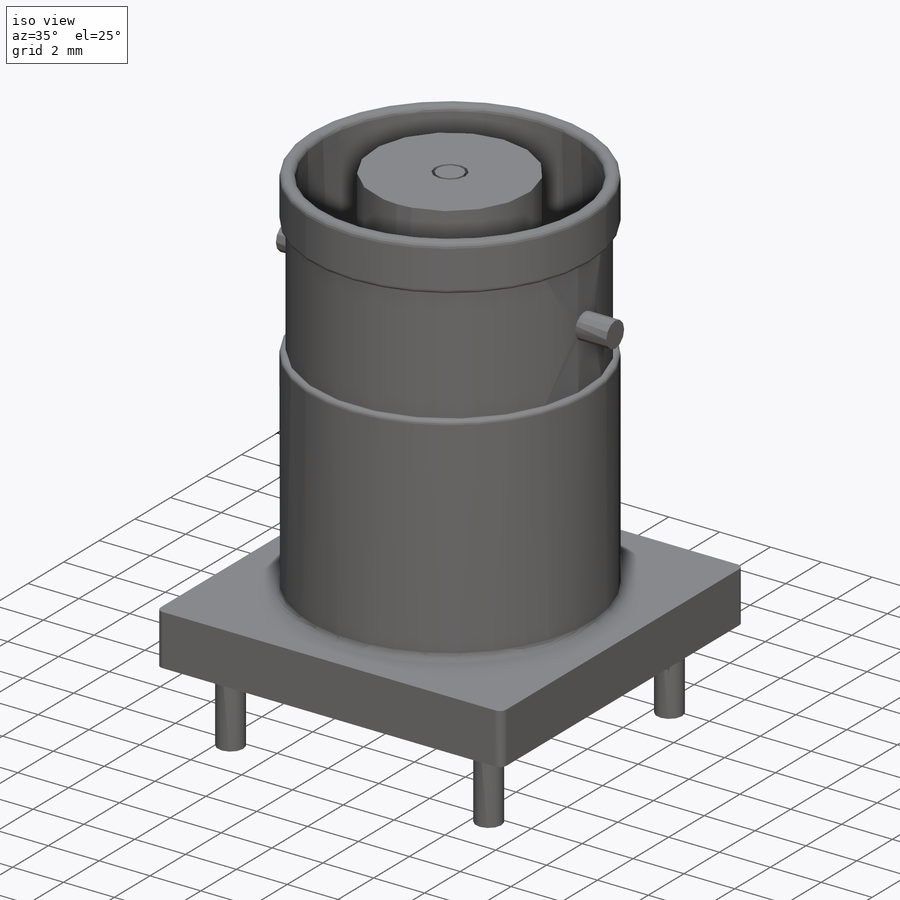
[diagram: iso view]
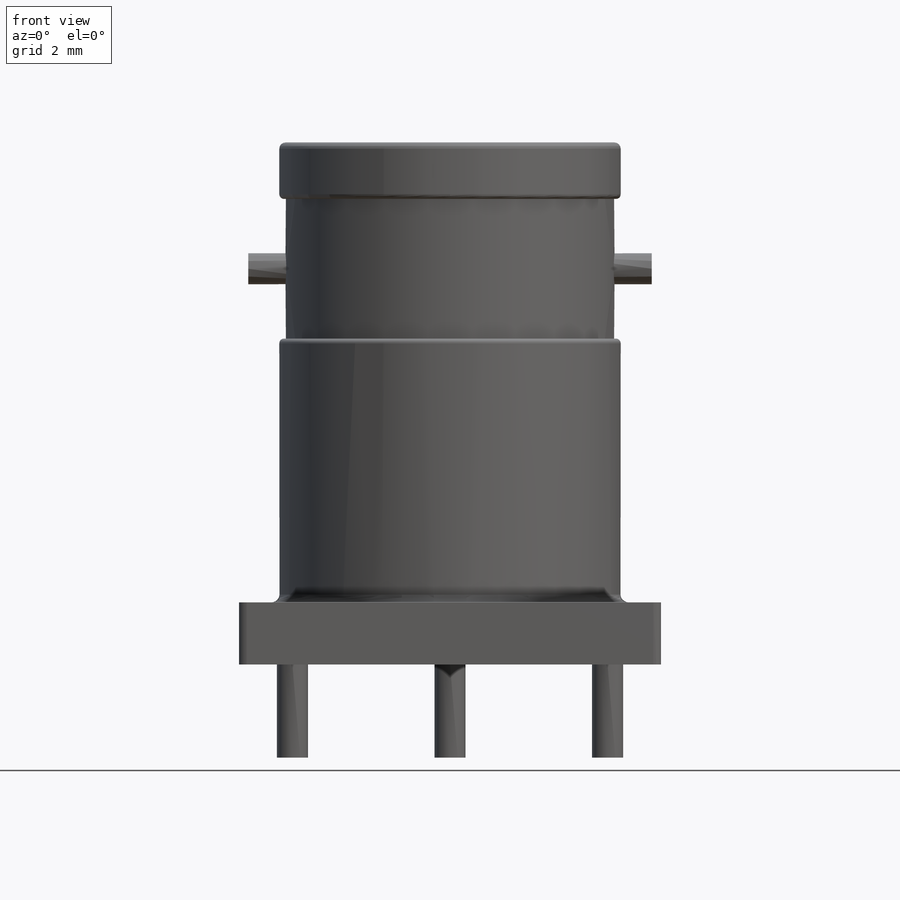
[diagram: front view]
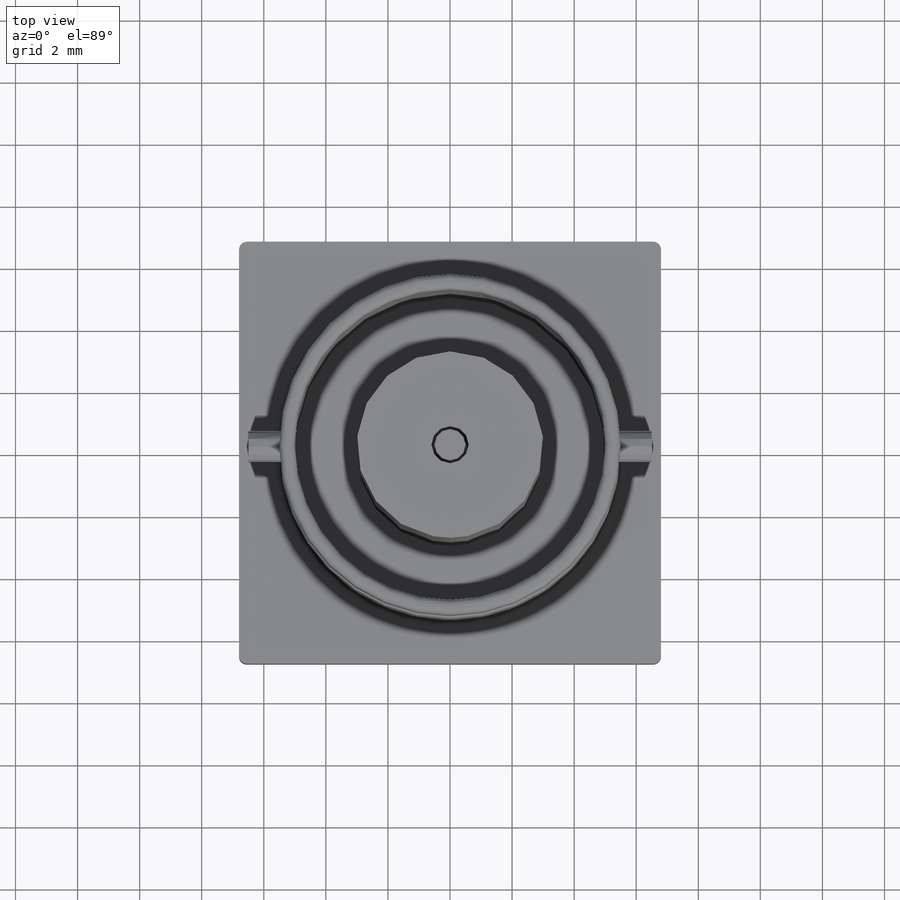
[diagram: top view]
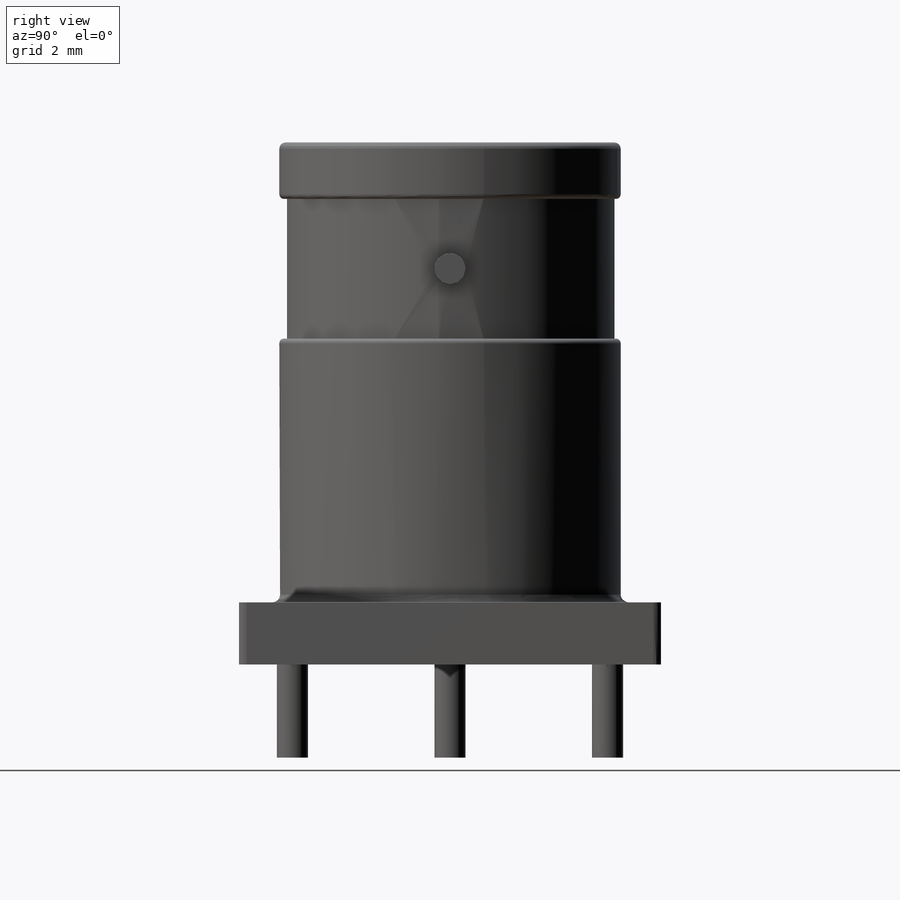
[diagram: right view]
SOLIDWORKS PART (.sldprt)
format: sldprt  version: not decoded by parser v0  size: 291,328 bytes
history: native  units: mm
features: sketch x7, extrude x4, revolve x2, material x1, mirror x1, plane x1 (+12 scaffold rows collapsed)
feature tree (28):
  scaffold x12  (default folders/planes/origin — collapsed)
  material  "Material <not specified>"
  sketch  "Sketch1"  dims[D2=0.25mm D1=13.6mm]
  extrude  "Base-Extrude"  Depth=2mm
  sketch  "Sketch3"  dims[c1.D7=0.2mm c1.D8=0.15mm c1.D9=0.25mm c1.D1=14.82mm c1.D2=0.5mm c1.D3=0.3mm c1.D4=5.5mm c1.D5=~1.974152mm c2.D3=0.3mm c2.D5=8.5mm c2.D6=4.5mm]
  revolve  "Boss-Revolve1"  Angle=360deg
  sketch  "Sketch4"  dims[D1=1.0mm]
  extrude  "Boss-Extrude1"  Depth=14.8mm
  sketch  "Sketch5"  dims[D1=1.2mm D2=6.0mm]
  extrude  "Boss-Extrude2"  [1 undecoded]
  sketch  "Sketch6"  dims[c1.D1=1.0mm c1.D2=7.18mm c1.D3=7.18mm c2.D3=45.0deg]
  extrude  "Boss-Extrude3"  Depth=3mm
  sketch  "Sketch7"  dims[c1.D1=1.2mm c1.D2=1.0mm c1.D3=0.2mm c1.D4=10.75mm c2.D2=0.5mm]
  revolve  "Boss-Revolve2"  Angle=360deg
  mirror  "Mirror1"
  plane  "Plane1"  Offset=0.5mm
  sketch  "Component_Outline"
decode coverage: 11 of 14 modeling features carry decoded parameters
note: ~ marks probable driven/reference dimensions
note: 1 parameter value undecoded
note: suppression state not decoded; provenance and decode notes live in map.json
